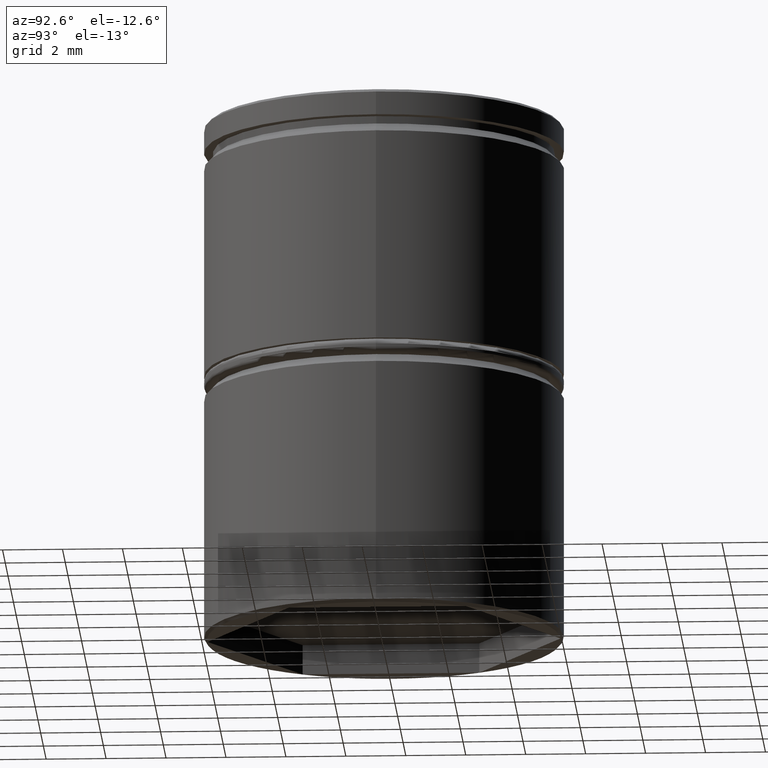
[diagram: clean part render]
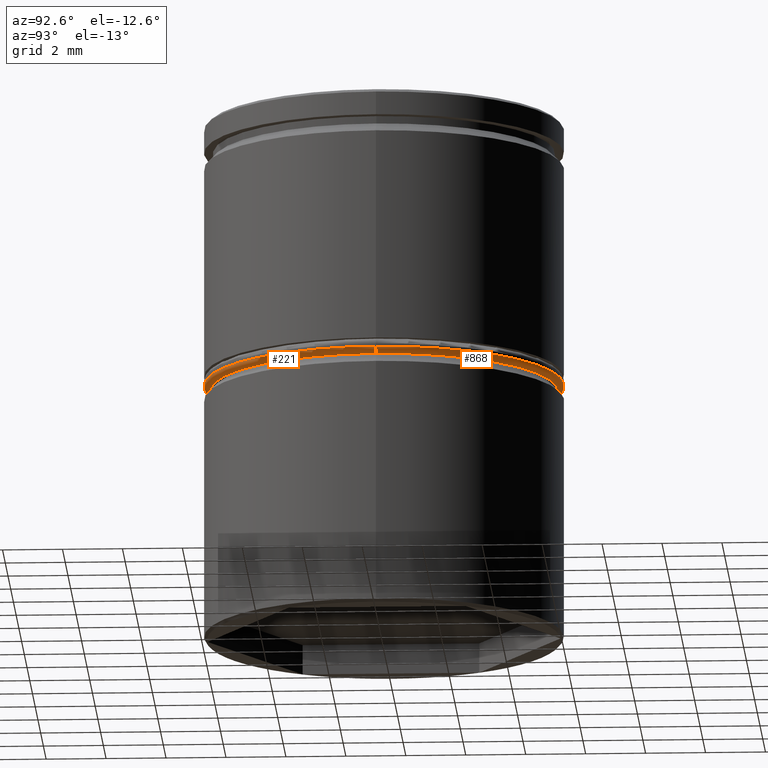
[diagram: same view with one multi-face feature highlighted, each face labeled with its STEP entity id]
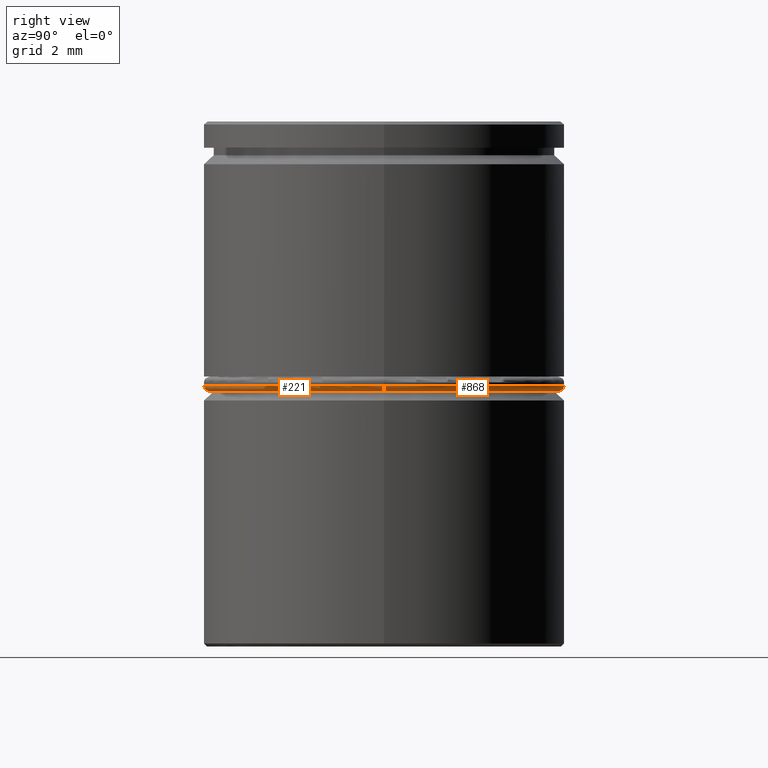
[diagram: same view with one multi-face feature highlighted, each face labeled with its STEP entity id]
A machine part, auxiliary view. The highlighted faces form ONE feature: a constant-radius fillet chain: 2 tangent blend faces with common blend radius 0.2 mm. The faces share edges in the B-rep.
A second angle (right view) of the same feature is appended — it is thin or edge-on in the first view.
Their STEP definitions:
[1] entity #221 (Torus):
#2 = CARTESIAN_POINT ( 'NONE',  ( 5.800000000000001599, 0.000000000000000000, -9.000000000000001776 ) ) ;
#30 = DIRECTION ( 'NONE',  ( -0.000000000000000000, -0.000000000000000000, -1.000000000000000000 ) ) ;
#65 = AXIS2_PLACEMENT_3D ( 'NONE', #578, #585, #906 ) ;
#70 = EDGE_CURVE ( 'NONE', #926, #183, #608, .T. ) ;
#88 = DIRECTION ( 'NONE',  ( 0.000000000000000000, -1.000000000000000000, 0.000000000000000000 ) ) ;
#148 = DIRECTION ( 'NONE',  ( 0.000000000000000000, 0.000000000000000000, 1.000000000000000000 ) ) ;
#183 = VERTEX_POINT ( 'NONE', #930 ) ;
#221 = ADVANCED_FACE ( 'NONE', ( #224 ), #706, .T. ) ;
#224 = FACE_OUTER_BOUND ( 'NONE', #548, .T. ) ;
#242 = CARTESIAN_POINT ( 'NONE',  ( 0.000000000000000000, 0.000000000000000000, -8.800000000000002487 ) ) ;
#266 = CARTESIAN_POINT ( 'NONE',  ( -5.800000000000001599, 7.225416114969385180E-16, -9.000000000000001776 ) ) ;
#286 = AXIS2_PLACEMENT_3D ( 'NONE', #242, #148, #1001 ) ;
#385 = DIRECTION ( 'NONE',  ( 1.224646799147353207E-16, 1.000000000000000000, -0.000000000000000000 ) ) ;
#432 = ORIENTED_EDGE ( 'NONE', *, *, #801, .F. ) ;
#464 = DIRECTION ( 'NONE',  ( 0.000000000000000000, 0.000000000000000000, -1.000000000000000000 ) ) ;
#548 = EDGE_LOOP ( 'NONE', ( #920, #432, #828, #921 ) ) ;
#576 = CARTESIAN_POINT ( 'NONE',  ( 6.000000000000000888, 0.000000000000000000, -8.800000000000002487 ) ) ;
#578 = CARTESIAN_POINT ( 'NONE',  ( 0.000000000000000000, 0.000000000000000000, -8.800000000000002487 ) ) ;
#585 = DIRECTION ( 'NONE',  ( 0.000000000000000000, 0.000000000000000000, 1.000000000000000000 ) ) ;
#608 = CIRCLE ( 'NONE', #771, 0.1999999999999996503 ) ;
#651 = EDGE_CURVE ( 'NONE', #741, #912, #840, .T. ) ;
#706 = TOROIDAL_SURFACE ( 'NONE', #286, 5.800000000000001599, 0.2000000000000000111 ) ;
#727 = AXIS2_PLACEMENT_3D ( 'NONE', #946, #88, #464 ) ;
#734 = CARTESIAN_POINT ( 'NONE',  ( 0.000000000000000000, 0.000000000000000000, -9.000000000000001776 ) ) ;
#741 = VERTEX_POINT ( 'NONE', #2 ) ;
#771 = AXIS2_PLACEMENT_3D ( 'NONE', #778, #385, #937 ) ;
#778 = CARTESIAN_POINT ( 'NONE',  ( -5.800000000000001599, 7.102951435054649637E-16, -8.800000000000002487 ) ) ;
#801 = EDGE_CURVE ( 'NONE', #741, #926, #940, .T. ) ;
#822 = AXIS2_PLACEMENT_3D ( 'NONE', #734, #30, #978 ) ;
#828 = ORIENTED_EDGE ( 'NONE', *, *, #651, .T. ) ;
#840 = CIRCLE ( 'NONE', #727, 0.2000000000000005107 ) ;
#849 = EDGE_CURVE ( 'NONE', #183, #912, #955, .T. ) ;
#906 = DIRECTION ( 'NONE',  ( 1.000000000000000000, 0.000000000000000000, 0.000000000000000000 ) ) ;
#912 = VERTEX_POINT ( 'NONE', #576 ) ;
#920 = ORIENTED_EDGE ( 'NONE', *, *, #70, .F. ) ;
#921 = ORIENTED_EDGE ( 'NONE', *, *, #849, .F. ) ;
#926 = VERTEX_POINT ( 'NONE', #266 ) ;
#930 = CARTESIAN_POINT ( 'NONE',  ( -6.000000000000000888, 7.347880794884120722E-16, -8.800000000000002487 ) ) ;
#937 = DIRECTION ( 'NONE',  ( -1.000000000000000000, 1.224646799147353454E-16, 0.000000000000000000 ) ) ;
#940 = CIRCLE ( 'NONE', #822, 5.800000000000001599 ) ;
#946 = CARTESIAN_POINT ( 'NONE',  ( 5.800000000000001599, 0.000000000000000000, -8.800000000000002487 ) ) ;
#955 = CIRCLE ( 'NONE', #65, 6.000000000000000888 ) ;
#978 = DIRECTION ( 'NONE',  ( 1.000000000000000000, 0.000000000000000000, 0.000000000000000000 ) ) ;
#1001 = DIRECTION ( 'NONE',  ( 1.000000000000000000, 0.000000000000000000, 0.000000000000000000 ) ) ;
[2] entity #868 (Torus):
#2 = CARTESIAN_POINT ( 'NONE',  ( 5.800000000000001599, 0.000000000000000000, -9.000000000000001776 ) ) ;
#17 = DIRECTION ( 'NONE',  ( -0.000000000000000000, -0.000000000000000000, -1.000000000000000000 ) ) ;
#54 = ORIENTED_EDGE ( 'NONE', *, *, #70, .T. ) ;
#70 = EDGE_CURVE ( 'NONE', #926, #183, #608, .T. ) ;
#88 = DIRECTION ( 'NONE',  ( 0.000000000000000000, -1.000000000000000000, 0.000000000000000000 ) ) ;
#92 = DIRECTION ( 'NONE',  ( 0.000000000000000000, 0.000000000000000000, 1.000000000000000000 ) ) ;
#158 = DIRECTION ( 'NONE',  ( 1.000000000000000000, 0.000000000000000000, 0.000000000000000000 ) ) ;
#173 = CARTESIAN_POINT ( 'NONE',  ( 0.000000000000000000, 0.000000000000000000, -8.800000000000002487 ) ) ;
#183 = VERTEX_POINT ( 'NONE', #930 ) ;
#266 = CARTESIAN_POINT ( 'NONE',  ( -5.800000000000001599, 7.225416114969385180E-16, -9.000000000000001776 ) ) ;
#311 = TOROIDAL_SURFACE ( 'NONE', #775, 5.800000000000001599, 0.2000000000000000111 ) ;
#318 = CARTESIAN_POINT ( 'NONE',  ( 0.000000000000000000, 0.000000000000000000, -9.000000000000001776 ) ) ;
#319 = DIRECTION ( 'NONE',  ( 0.000000000000000000, 0.000000000000000000, 1.000000000000000000 ) ) ;
#329 = ORIENTED_EDGE ( 'NONE', *, *, #655, .F. ) ;
#385 = DIRECTION ( 'NONE',  ( 1.224646799147353207E-16, 1.000000000000000000, -0.000000000000000000 ) ) ;
#386 = ORIENTED_EDGE ( 'NONE', *, *, #656, .F. ) ;
#464 = DIRECTION ( 'NONE',  ( 0.000000000000000000, 0.000000000000000000, -1.000000000000000000 ) ) ;
#478 = DIRECTION ( 'NONE',  ( 1.000000000000000000, 0.000000000000000000, 0.000000000000000000 ) ) ;
#534 = CIRCLE ( 'NONE', #615, 5.800000000000001599 ) ;
#535 = CARTESIAN_POINT ( 'NONE',  ( 0.000000000000000000, 0.000000000000000000, -8.800000000000002487 ) ) ;
#576 = CARTESIAN_POINT ( 'NONE',  ( 6.000000000000000888, 0.000000000000000000, -8.800000000000002487 ) ) ;
#608 = CIRCLE ( 'NONE', #771, 0.1999999999999996503 ) ;
#615 = AXIS2_PLACEMENT_3D ( 'NONE', #318, #17, #644 ) ;
#644 = DIRECTION ( 'NONE',  ( 1.000000000000000000, 0.000000000000000000, 0.000000000000000000 ) ) ;
#651 = EDGE_CURVE ( 'NONE', #741, #912, #840, .T. ) ;
#655 = EDGE_CURVE ( 'NONE', #912, #183, #696, .T. ) ;
#656 = EDGE_CURVE ( 'NONE', #926, #741, #534, .T. ) ;
#696 = CIRCLE ( 'NONE', #859, 6.000000000000000888 ) ;
#727 = AXIS2_PLACEMENT_3D ( 'NONE', #946, #88, #464 ) ;
#741 = VERTEX_POINT ( 'NONE', #2 ) ;
#747 = ORIENTED_EDGE ( 'NONE', *, *, #651, .F. ) ;
#771 = AXIS2_PLACEMENT_3D ( 'NONE', #778, #385, #937 ) ;
#775 = AXIS2_PLACEMENT_3D ( 'NONE', #535, #319, #158 ) ;
#778 = CARTESIAN_POINT ( 'NONE',  ( -5.800000000000001599, 7.102951435054649637E-16, -8.800000000000002487 ) ) ;
#840 = CIRCLE ( 'NONE', #727, 0.2000000000000005107 ) ;
#852 = EDGE_LOOP ( 'NONE', ( #386, #54, #329, #747 ) ) ;
#859 = AXIS2_PLACEMENT_3D ( 'NONE', #173, #92, #478 ) ;
#868 = ADVANCED_FACE ( 'NONE', ( #879 ), #311, .T. ) ;
#879 = FACE_OUTER_BOUND ( 'NONE', #852, .T. ) ;
#912 = VERTEX_POINT ( 'NONE', #576 ) ;
#926 = VERTEX_POINT ( 'NONE', #266 ) ;
#930 = CARTESIAN_POINT ( 'NONE',  ( -6.000000000000000888, 7.347880794884120722E-16, -8.800000000000002487 ) ) ;
#937 = DIRECTION ( 'NONE',  ( -1.000000000000000000, 1.224646799147353454E-16, 0.000000000000000000 ) ) ;
#946 = CARTESIAN_POINT ( 'NONE',  ( 5.800000000000001599, 0.000000000000000000, -8.800000000000002487 ) ) ;